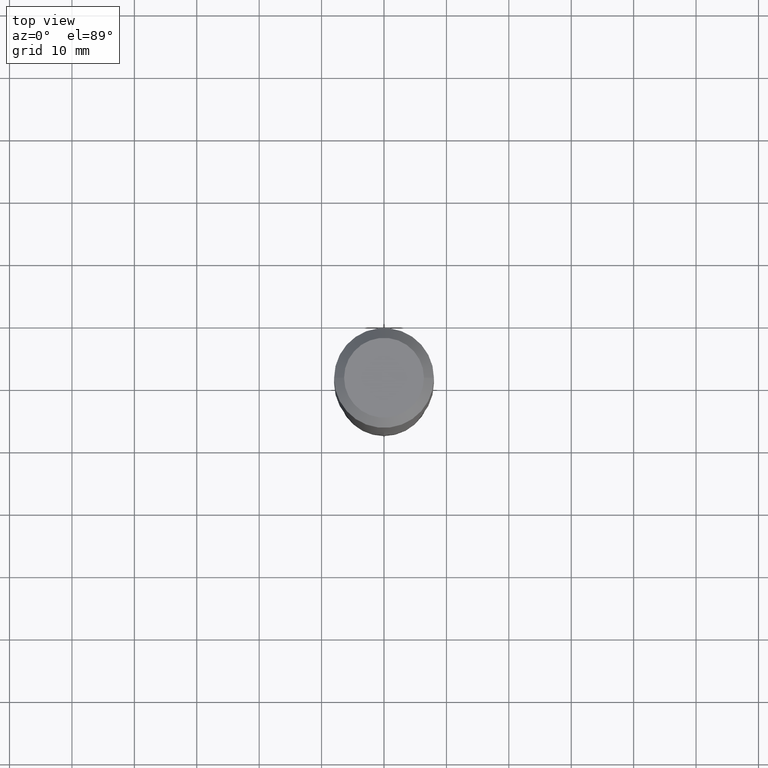
[diagram: clean part render]
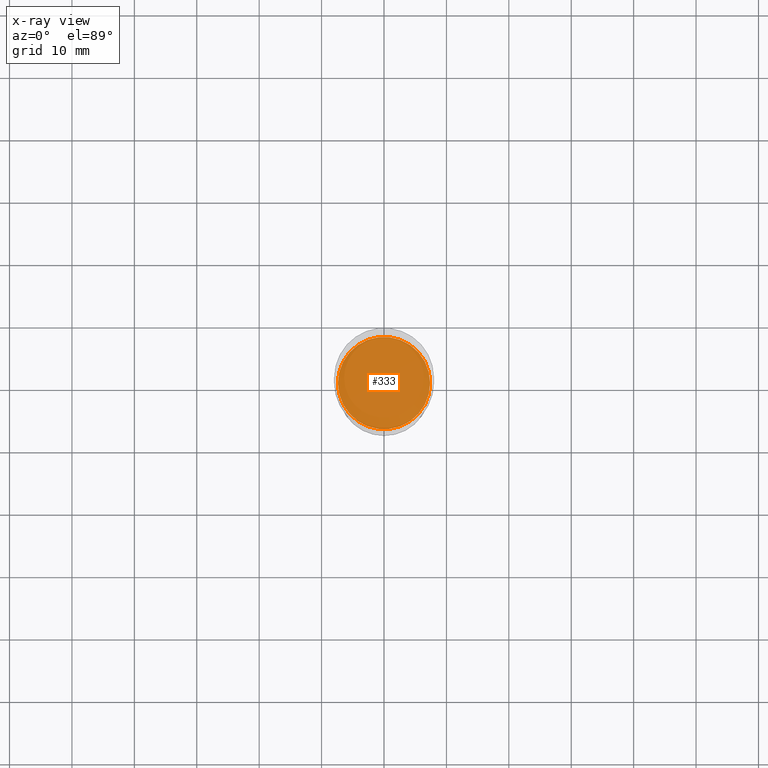
[diagram: x-ray — body ghosted, one internal face saturated and labeled with its STEP entity id]
A machine part, top view, then the same camera in x-ray: the body is ghosted and one INTERNAL B-rep face — a face not visible from any outside direction — is saturated and labeled: STEP entity #333.
In plain terms, the highlighted planar face has unit normal (-0, 0, 1).
Its self-contained STEP definition (entity closure, byte-faithful):
#9 = EDGE_CURVE ( 'NONE', #451, #253, #331, .T. ) ;
#87 = AXIS2_PLACEMENT_3D ( 'NONE', #439, #171, #474 ) ;
#90 = ORIENTED_EDGE ( 'NONE', *, *, #433, .F. ) ;
#99 = DIRECTION ( 'NONE',  ( 1.000000000000000000, -6.982962677686266711E-15, 0.000000000000000000 ) ) ;
#145 = AXIS2_PLACEMENT_3D ( 'NONE', #200, #289, #99 ) ;
#171 = DIRECTION ( 'NONE',  ( -2.438088387897960049E-29, 3.491481338843145188E-15, 1.000000000000000000 ) ) ;
#174 = PLANE ( 'NONE',  #87 ) ;
#176 = CARTESIAN_POINT ( 'NONE',  ( -0.2908499999999999974, -4.803718241380367951E-15, -1.968499999999999472 ) ) ;
#189 = EDGE_LOOP ( 'NONE', ( #90, #363 ) ) ;
#200 = CARTESIAN_POINT ( 'NONE',  ( 4.813905344975440153E-29, -6.872981015512730130E-15, -1.968499999999999472 ) ) ;
#209 = FACE_OUTER_BOUND ( 'NONE', #189, .T. ) ;
#212 = DIRECTION ( 'NONE',  ( -2.445468806185136597E-29, 3.491481338843145583E-15, 1.000000000000000000 ) ) ;
#221 = CIRCLE ( 'NONE', #145, 0.2908499999999999974 ) ;
#253 = VERTEX_POINT ( 'NONE', #345 ) ;
#289 = DIRECTION ( 'NONE',  ( -2.445468806185136597E-29, 3.491481338843145583E-15, 1.000000000000000000 ) ) ;
#330 = DIRECTION ( 'NONE',  ( 1.000000000000000000, -6.982962677686266711E-15, 0.000000000000000000 ) ) ;
#331 = CIRCLE ( 'NONE', #355, 0.2908499999999999974 ) ;
#333 = ADVANCED_FACE ( 'NONE', ( #209 ), #174, .F. ) ;
#345 = CARTESIAN_POINT ( 'NONE',  ( 0.2908499999999999974, -8.903975710317780745E-15, -1.968499999999999472 ) ) ;
#355 = AXIS2_PLACEMENT_3D ( 'NONE', #364, #212, #330 ) ;
#363 = ORIENTED_EDGE ( 'NONE', *, *, #9, .F. ) ;
#364 = CARTESIAN_POINT ( 'NONE',  ( 4.813905344975440153E-29, -6.872981015512730130E-15, -1.968499999999999472 ) ) ;
#433 = EDGE_CURVE ( 'NONE', #253, #451, #221, .T. ) ;
#439 = CARTESIAN_POINT ( 'NONE',  ( 4.813905344975440153E-29, -6.872981015512730130E-15, -1.968499999999999472 ) ) ;
#451 = VERTEX_POINT ( 'NONE', #176 ) ;
#474 = DIRECTION ( 'NONE',  ( 1.000000000000000000, -6.982962677686265922E-15, 4.876176775795935793E-29 ) ) ;